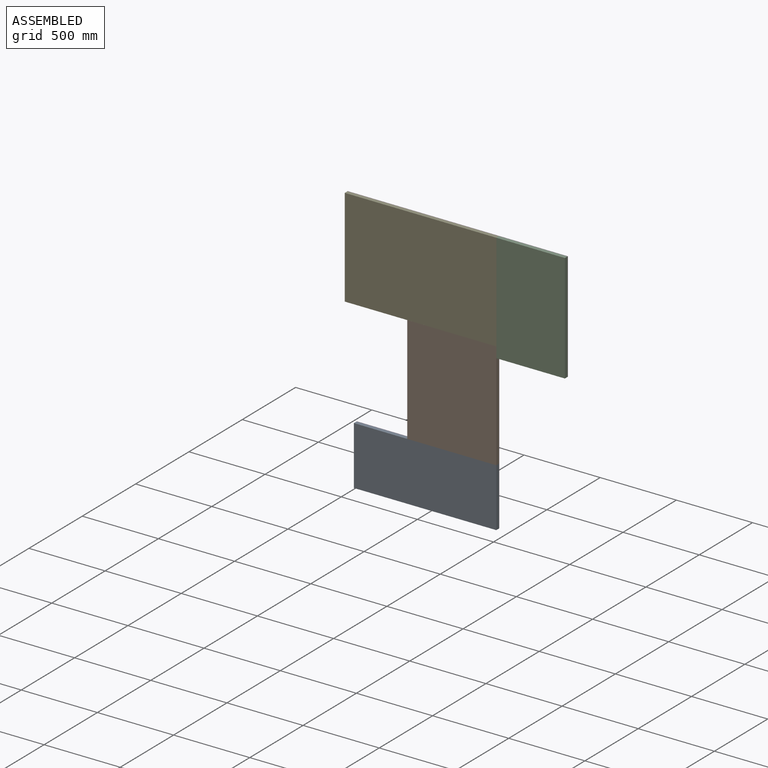
[diagram: assembled view]
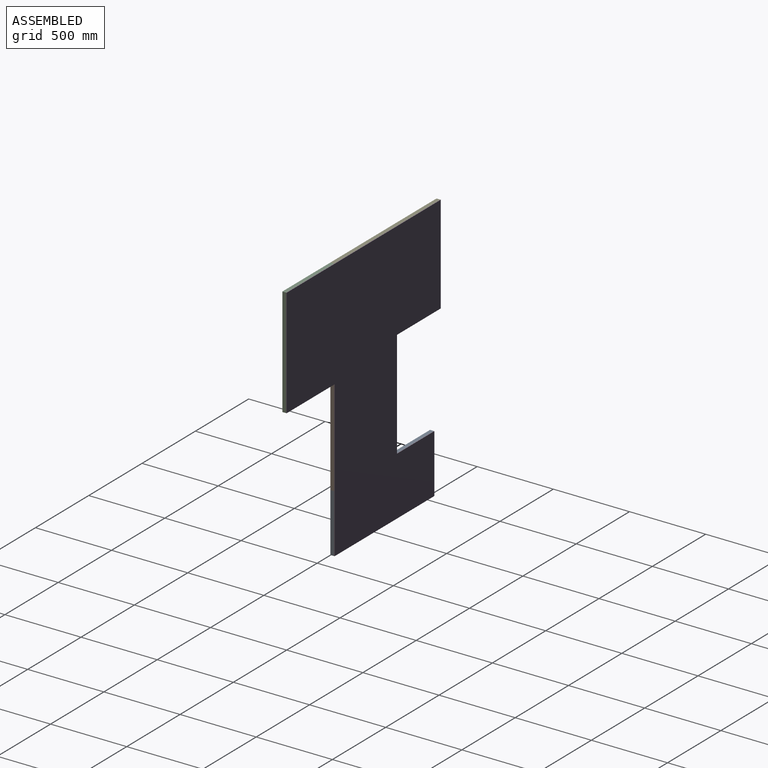
[diagram: assembled view, second angle]
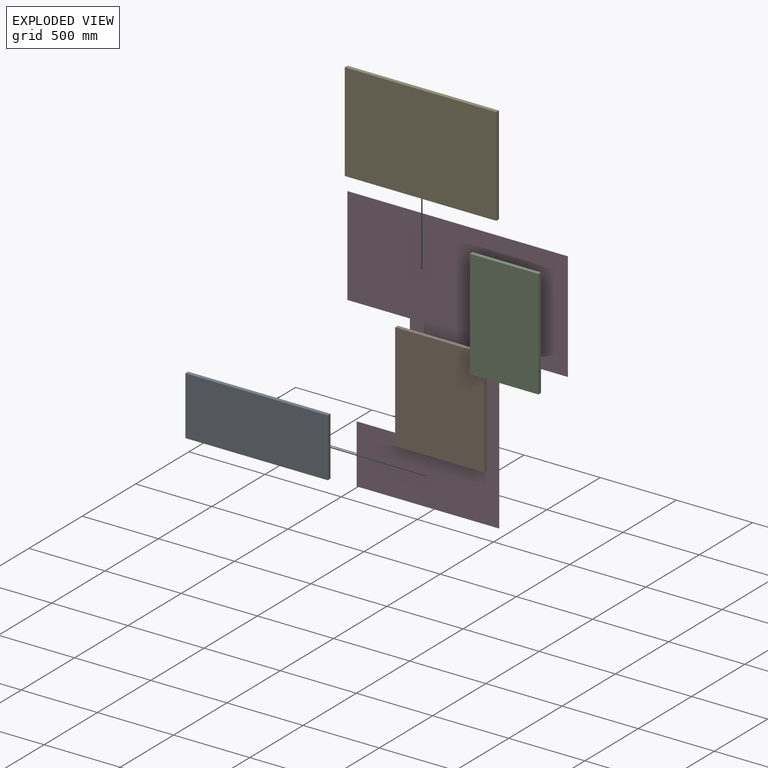
[diagram: exploded view]
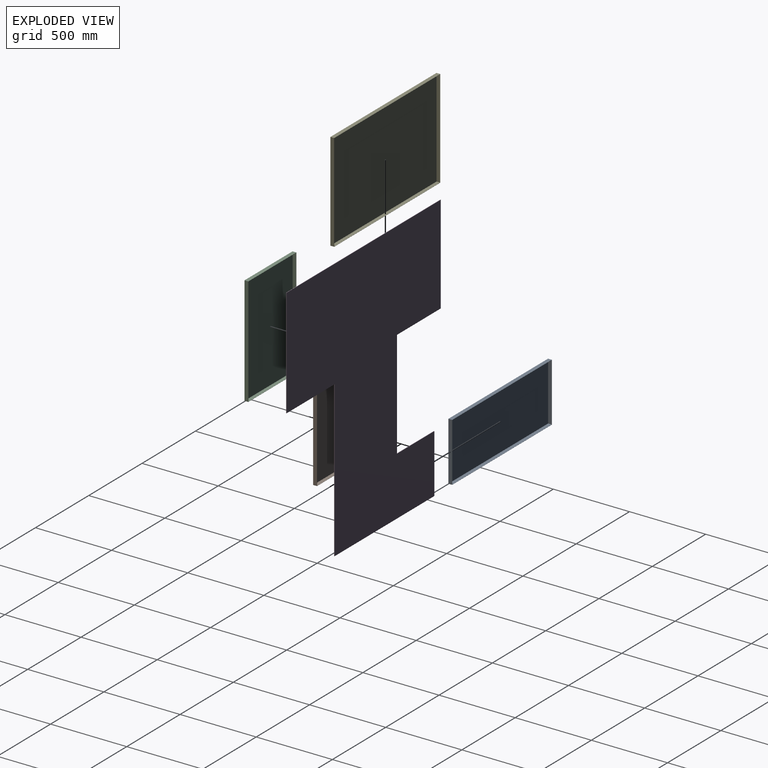
[diagram: exploded view, second angle]
ASSEMBLY  parts=5 mates=12
PART A: 11 faces, bbox 935x25x385 mm
  f0: plane 935x385mm, normal (0,1,0), area 2636mm2, adj f1,f2,f3,f4,f6,f7,f8,f9
  f1: plane 385x25mm, normal (-1,0,0), area 9625mm2, adj f0,f2,f4,f5
  f2: plane 935x25mm, normal (0,0,-1), area 23375mm2, adj f0,f1,f3,f5
  f3: plane 385x25mm, normal (1,0,0), area 9625mm2, adj f0,f2,f4,f5
  f4: plane 935x25mm, normal (0,0,1), area 23375mm2, adj f0,f1,f3,f5
  f5: plane 935x385mm, normal (0,-1,0), area 359975mm2, adj f1,f2,f3,f4
  f6: plane 383x24mm, normal (1,0,0), area 9192mm2, adj f0,f7,f9,f10
  f7: plane 933x24mm, normal (0,0,1), area 22392mm2, adj f0,f6,f8,f10
  f8: plane 383x24mm, normal (-1,0,0), area 9192mm2, adj f0,f7,f9,f10
  f9: plane 933x24mm, normal (0,0,-1), area 22392mm2, adj f0,f6,f8,f10
  f10: plane 933x383mm, normal (0,1,0), area 357339mm2, adj f6,f7,f8,f9
PART B: 11 faces, bbox 585x25x705 mm
  f0: plane 705x585mm, normal (0,1,0), area 2576mm2, adj f1,f2,f3,f4,f6,f7,f8,f9
  f1: plane 705x25mm, normal (-1,0,0), area 17625mm2, adj f0,f2,f4,f5
  f2: plane 585x25mm, normal (0,0,-1), area 14625mm2, adj f0,f1,f3,f5
  f3: plane 705x25mm, normal (1,0,0), area 17625mm2, adj f0,f2,f4,f5
  f4: plane 585x25mm, normal (0,0,1), area 14625mm2, adj f0,f1,f3,f5
  f5: plane 705x585mm, normal (0,-1,0), area 412425mm2, adj f1,f2,f3,f4
  f6: plane 703x24mm, normal (1,0,0), area 16872mm2, adj f0,f7,f9,f10
  f7: plane 583x24mm, normal (0,0,1), area 13992mm2, adj f0,f6,f8,f10
  f8: plane 703x24mm, normal (-1,0,0), area 16872mm2, adj f0,f7,f9,f10
  f9: plane 583x24mm, normal (0,0,-1), area 13992mm2, adj f0,f6,f8,f10
  f10: plane 703x583mm, normal (0,1,0), area 409849mm2, adj f6,f7,f8,f9
PART C: 11 faces, bbox 715x25x450 mm
  f0: plane 715x450mm, normal (0,1,0), area 2326mm2, adj f1,f2,f3,f4,f6,f7,f8,f9
  f1: plane 450x25mm, normal (-1,0,0), area 11250mm2, adj f0,f2,f4,f5
  f2: plane 715x25mm, normal (0,0,-1), area 17875mm2, adj f0,f1,f3,f5
  f3: plane 450x25mm, normal (1,0,0), area 11250mm2, adj f0,f2,f4,f5
  f4: plane 715x25mm, normal (0,0,1), area 17875mm2, adj f0,f1,f3,f5
  f5: plane 715x450mm, normal (0,-1,0), area 321750mm2, adj f1,f2,f3,f4
  f6: plane 448x24mm, normal (1,0,0), area 10752mm2, adj f0,f7,f9,f10
  f7: plane 713x24mm, normal (0,0,1), area 17112mm2, adj f0,f6,f8,f10
  f8: plane 448x24mm, normal (-1,0,0), area 10752mm2, adj f0,f7,f9,f10
  f9: plane 713x24mm, normal (0,0,-1), area 17112mm2, adj f0,f6,f8,f10
  f10: plane 713x448mm, normal (0,1,0), area 319424mm2, adj f6,f7,f8,f9
PART D: 12 faces, bbox 1445x3x1735 mm
  f0: plane 645x3mm, normal (-1,0,0), area 1935mm2, adj f1,f9,f10,f11
  f1: plane 410x3mm, normal (0,0,-1), area 1230mm2, adj f0,f2,f10,f11
  f2: plane 705x3mm, normal (-1,0,0), area 2115mm2, adj f1,f3,f10,f11
  f3: plane 350x3mm, normal (0,0,1), area 1050mm2, adj f2,f4,f10,f11
  f4: plane 385x3mm, normal (-1,0,0), area 1155mm2, adj f3,f5,f10,f11
  f5: plane 935x3mm, normal (0,0,-1), area 2805mm2, adj f4,f6,f10,f11
  f6: plane 1020x3mm, normal (1,0,0), area 3060mm2, adj f5,f7,f10,f11
  f7: plane 450x3mm, normal (0,0,-1), area 1350mm2, adj f6,f8,f10,f11
  f8: plane 715x3mm, normal (1,0,0), area 2145mm2, adj f7,f9,f10,f11
  f9: plane 1445x3mm, normal (0,0,1), area 4335mm2, adj f0,f8,f10,f11
  f10: plane 1735x1445mm, normal (0,-1,0), area 1735925mm2, adj f0,f1,f2,f3,f4,f5,f6,f7
  f11: plane 1735x1445mm, normal (0,1,0), area 1735925mm2, adj f0,f1,f2,f3,f4,f5,f6,f7
PART E: 11 faces, bbox 995x25x645 mm
  f0: plane 995x645mm, normal (0,1,0), area 3276mm2, adj f1,f2,f3,f4,f6,f7,f8,f9
  f1: plane 645x25mm, normal (-1,0,0), area 16125mm2, adj f0,f2,f4,f5
  f2: plane 995x25mm, normal (0,0,-1), area 24875mm2, adj f0,f1,f3,f5
  f3: plane 645x25mm, normal (1,0,0), area 16125mm2, adj f0,f2,f4,f5
  f4: plane 995x25mm, normal (0,0,1), area 24875mm2, adj f0,f1,f3,f5
  f5: plane 995x645mm, normal (0,-1,0), area 641775mm2, adj f1,f2,f3,f4
  f6: plane 643x24mm, normal (1,0,0), area 15432mm2, adj f0,f7,f9,f10
  f7: plane 993x24mm, normal (0,0,1), area 23832mm2, adj f0,f6,f8,f10
  f8: plane 643x24mm, normal (-1,0,0), area 15432mm2, adj f0,f7,f9,f10
  f9: plane 993x24mm, normal (0,0,-1), area 23832mm2, adj f0,f6,f8,f10
  f10: plane 993x643mm, normal (0,1,0), area 638499mm2, adj f6,f7,f8,f9
PLACE A t=(281.59,313.7,-1280.67)mm
PLACE B t=(631.59,313.7,-895.67)mm
PLACE C rot(axis=(0,1,0),90deg) t=(1216.59,313.7,454.33)mm
PLACE D t=(1024.87,316.7,-1280.67)mm fixed
PLACE E rot(axis=(-0.54,0,0.84),0deg) t=(221.59,313.7,-190.67)mm
MATE planar E.f4 <-> D.f9  axis (0,0,1) through (1216.59,301.2,454.33)mm
MATE planar B.f2 <-> A.f4  axis (0,0,-1) through (924.09,301.2,-895.67)mm
MATE planar D.f10 <-> C.f0  axis (0,-1,0) through (1441.59,313.7,-260.67)mm
MATE planar E.f3 <-> C.f2  axis (1,0,0) through (1216.59,288.7,454.33)mm
MATE planar A.f1 <-> D.f4  axis (-1,0,0) through (281.59,301.2,-1088.17)mm
MATE planar D.f10 <-> E.f0  axis (0,-1,0) through (907.93,313.7,-288.01)mm
MATE planar A.f2 <-> D.f5  axis (0,0,-1) through (1216.59,301.2,-1280.67)mm
MATE planar D.f10 <-> A.f0  axis (0,-1,0) through (631.59,313.7,-895.67)mm
MATE planar C.f4 <-> D.f8  axis (1,0,0) through (1666.59,288.7,454.33)mm
MATE planar D.f10 <-> B.f0  axis (0,-1,0) through (907.93,313.7,-288.01)mm
MATE planar B.f3 <-> A.f3  axis (1,0,0) through (1216.59,301.2,-543.17)mm
MATE planar C.f1 <-> D.f9  axis (0,0,1) through (1441.59,301.2,454.33)mm
